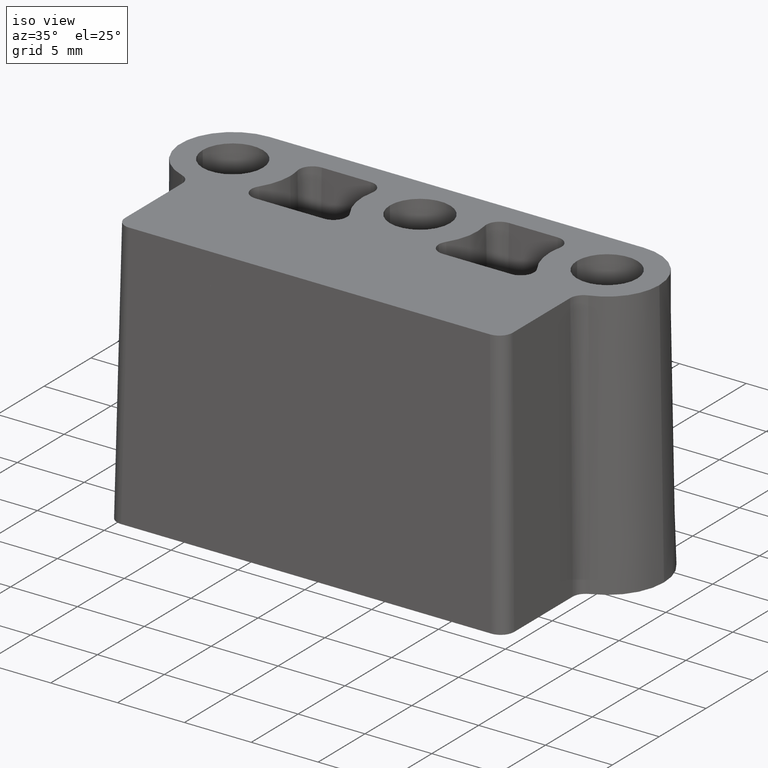
[diagram: clean part render]
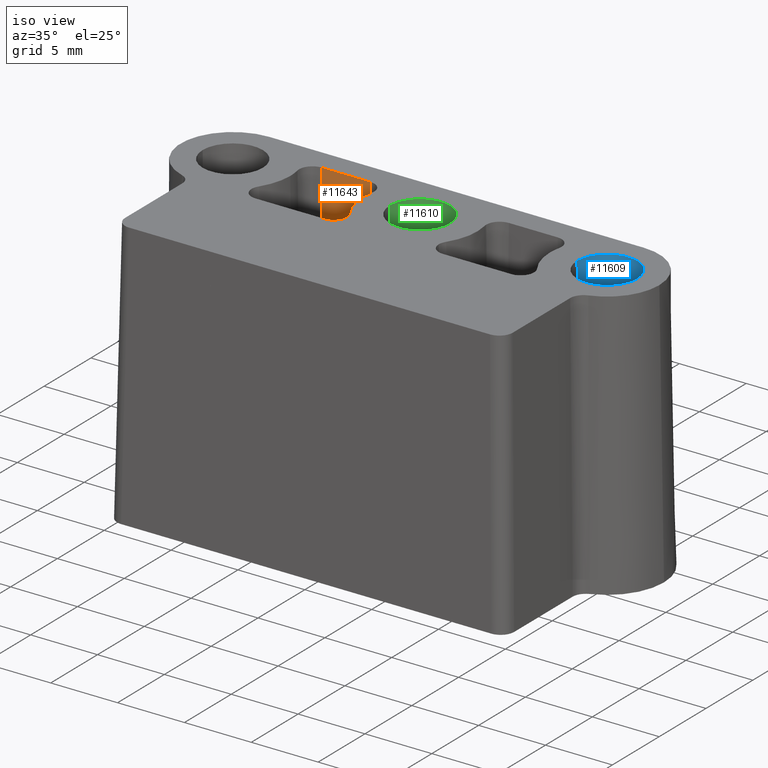
[diagram: same view with three faces highlighted in distinct colors, each labeled with its STEP entity id]
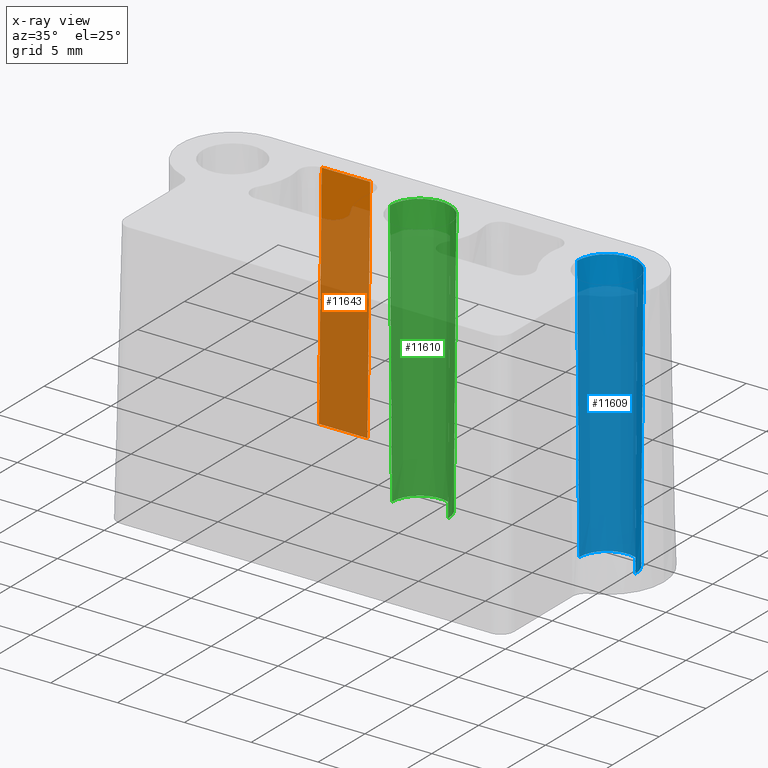
[diagram: x-ray of the same camera — body ghosted, the three highlighted faces saturated]
A machine part, iso view with three faces highlighted in distinct colors.
The next image is the same camera in x-ray (body ghosted, the three faces saturated) — at least one of them is partly hidden behind the body in this view.
Their STEP definitions:

[orange] entity #11643 — the highlighted planar face has unit normal (0, 0.9998, -0.0175).
#4049 = EDGE_CURVE ( 'NONE', #15443, #15431, #7108, .T. ) ;
#6266 = VERTEX_POINT ( 'NONE', #23541 ) ;
#6765 = VERTEX_POINT ( 'NONE', #21726 ) ;
#6856 = EDGE_LOOP ( 'NONE', ( #25269, #25274, #25267, #25300 ) ) ;
#6998 = DIRECTION ( 'NONE',  ( -1.513754957952235100E-017, 0.01745240643728355000, 0.9998476951563911600 ) ) ;
#7108 = LINE ( 'NONE', #7138, #34076 ) ;
#7138 = CARTESIAN_POINT ( 'NONE',  ( -5.184401802443297800, 34.40089870143563600, 20.00000000000000000 ) ) ;
#11228 = CARTESIAN_POINT ( 'NONE',  ( -8.815598197556704800, 34.40089870143563600, 20.00000000000000000 ) ) ;
#11232 = LINE ( 'NONE', #11228, #12269 ) ;
#11240 = DIRECTION ( 'NONE',  ( -1.000000000000000000, -0.0000000000000000000, -0.0000000000000000000 ) ) ;
#11643 = ADVANCED_FACE ( 'NONE', ( #31363 ), #31364, .F. ) ;
#12269 = VECTOR ( 'NONE', #11240, 1000.000000000000000 ) ;
#12756 = VECTOR ( 'NONE', #31746, 1000.000000000000000 ) ;
#12764 = VECTOR ( 'NONE', #31763, 1000.000000000000200 ) ;
#15192 = EDGE_CURVE ( 'NONE', #15431, #6765, #11232, .T. ) ;
#15431 = VERTEX_POINT ( 'NONE', #16253 ) ;
#15443 = VERTEX_POINT ( 'NONE', #16303 ) ;
#16253 = CARTESIAN_POINT ( 'NONE',  ( -5.184401802443297800, 34.40089870143563600, 20.00000000000000000 ) ) ;
#16303 = CARTESIAN_POINT ( 'NONE',  ( -5.184401802443297800, 34.10036695178277500, 2.782547593562719500 ) ) ;
#18939 = AXIS2_PLACEMENT_3D ( 'NONE', #31361, #31366, #31367 ) ;
#20166 = EDGE_CURVE ( 'NONE', #6266, #15443, #31744, .T. ) ;
#20170 = EDGE_CURVE ( 'NONE', #6266, #6765, #31761, .T. ) ;
#21726 = CARTESIAN_POINT ( 'NONE',  ( -8.815598197556704800, 34.40089870143563600, 20.00000000000000000 ) ) ;
#23541 = CARTESIAN_POINT ( 'NONE',  ( -8.815598197556704800, 34.10036695178277500, 2.782547593562723100 ) ) ;
#25267 = ORIENTED_EDGE ( 'NONE', *, *, #4049, .T. ) ;
#25269 = ORIENTED_EDGE ( 'NONE', *, *, #20170, .F. ) ;
#25274 = ORIENTED_EDGE ( 'NONE', *, *, #20166, .T. ) ;
#25300 = ORIENTED_EDGE ( 'NONE', *, *, #15192, .T. ) ;
#31361 = CARTESIAN_POINT ( 'NONE',  ( -8.815598197556704800, 34.40089870143563600, 20.00000000000000000 ) ) ;
#31363 = FACE_OUTER_BOUND ( 'NONE', #6856, .T. ) ;
#31364 = PLANE ( 'NONE',  #18939 ) ;
#31366 = DIRECTION ( 'NONE',  ( 0.0000000000000000000, 0.9998476951563912700, -0.01745240643728355000 ) ) ;
#31367 = DIRECTION ( 'NONE',  ( 0.0000000000000000000, 0.01745240643728354600, 0.9998476951563911600 ) ) ;
#31744 = LINE ( 'NONE', #31745, #12756 ) ;
#31745 = CARTESIAN_POINT ( 'NONE',  ( -8.815598197556704800, 34.10036695178277500, 2.782547593562716000 ) ) ;
#31746 = DIRECTION ( 'NONE',  ( 1.000000000000000000, -0.0000000000000000000, -0.0000000000000000000 ) ) ;
#31761 = LINE ( 'NONE', #31762, #12764 ) ;
#31762 = CARTESIAN_POINT ( 'NONE',  ( -8.815598197556704800, 34.40089870143563600, 20.00000000000000000 ) ) ;
#31763 = DIRECTION ( 'NONE',  ( -0.0000000000000000000, 0.01745240643728355000, 0.9998476951563911600 ) ) ;
#34076 = VECTOR ( 'NONE', #6998, 1000.000000000000200 ) ;

[blue] entity #11609 — the highlighted conical surface has half-angle 0.43 deg.
#3937 = EDGE_CURVE ( 'NONE', #15480, #15417, #32594, .T. ) ;
#3957 = EDGE_CURVE ( 'NONE', #15424, #6696, #32313, .T. ) ;
#6696 = VERTEX_POINT ( 'NONE', #22203 ) ;
#11292 = CARTESIAN_POINT ( 'NONE',  ( 13.99999999999999800, 32.29999999999999700, 20.00000000000000000 ) ) ;
#11293 = DIRECTION ( 'NONE',  ( 0.0000000000000000000, 0.0000000000000000000, 1.000000000000000000 ) ) ;
#11294 = DIRECTION ( 'NONE',  ( 1.000000000000000000, 0.0000000000000000000, 0.0000000000000000000 ) ) ;
#11460 = CARTESIAN_POINT ( 'NONE',  ( 13.99999999999999800, 32.29999999999999700, 0.0000000000000000000 ) ) ;
#11461 = DIRECTION ( 'NONE',  ( 0.0000000000000000000, 0.0000000000000000000, 1.000000000000000000 ) ) ;
#11462 = DIRECTION ( 'NONE',  ( 1.000000000000000000, 0.0000000000000000000, 0.0000000000000000000 ) ) ;
#11609 = ADVANCED_FACE ( 'NONE', ( #30844 ), #18960, .F. ) ;
#12117 = AXIS2_PLACEMENT_3D ( 'NONE', #11460, #11461, #11462 ) ;
#12169 = CIRCLE ( 'NONE', #12117, 2.100000000000001000 ) ;
#12280 = AXIS2_PLACEMENT_3D ( 'NONE', #11292, #11293, #11294 ) ;
#12282 = CIRCLE ( 'NONE', #12280, 2.249996408119448800 ) ;
#15227 = EDGE_CURVE ( 'NONE', #6696, #15417, #12282, .T. ) ;
#15311 = EDGE_CURVE ( 'NONE', #15424, #15480, #12169, .T. ) ;
#15376 = EDGE_LOOP ( 'NONE', ( #17894, #17893, #17892, #17891 ) ) ;
#15417 = VERTEX_POINT ( 'NONE', #16193 ) ;
#15424 = VERTEX_POINT ( 'NONE', #16210 ) ;
#15480 = VERTEX_POINT ( 'NONE', #16439 ) ;
#16193 = CARTESIAN_POINT ( 'NONE',  ( 11.75000359188055100, 32.29999999999999700, 20.00000000000000000 ) ) ;
#16210 = CARTESIAN_POINT ( 'NONE',  ( 16.10000000000000100, 32.29999999999999700, 0.0000000000000000000 ) ) ;
#16439 = CARTESIAN_POINT ( 'NONE',  ( 11.89999999999999900, 32.29999999999999700, 0.0000000000000000000 ) ) ;
#17891 = ORIENTED_EDGE ( 'NONE', *, *, #15227, .T. ) ;
#17892 = ORIENTED_EDGE ( 'NONE', *, *, #3957, .T. ) ;
#17893 = ORIENTED_EDGE ( 'NONE', *, *, #15311, .F. ) ;
#17894 = ORIENTED_EDGE ( 'NONE', *, *, #3937, .F. ) ;
#18955 = AXIS2_PLACEMENT_3D ( 'NONE', #30843, #30845, #30842 ) ;
#18960 = CONICAL_SURFACE ( 'NONE', #18955, 2.100000000000001000, 0.007499679795819651000 ) ;
#22203 = CARTESIAN_POINT ( 'NONE',  ( 16.24999640811944700, 32.29999999999999700, 20.00000000000000000 ) ) ;
#30842 = DIRECTION ( 'NONE',  ( 1.000000000000000000, 0.0000000000000000000, 0.0000000000000000000 ) ) ;
#30843 = CARTESIAN_POINT ( 'NONE',  ( 13.99999999999999800, 32.29999999999999700, 0.0000000000000000000 ) ) ;
#30844 = FACE_OUTER_BOUND ( 'NONE', #15376, .T. ) ;
#30845 = DIRECTION ( 'NONE',  ( 0.0000000000000000000, 0.0000000000000000000, 1.000000000000000000 ) ) ;
#32307 = CARTESIAN_POINT ( 'NONE',  ( 16.10000000000000100, 32.29999999999999700, 0.0000000000000000000 ) ) ;
#32313 = LINE ( 'NONE', #32307, #34092 ) ;
#32430 = DIRECTION ( 'NONE',  ( 0.007499609492522719600, 0.0000000000000000000, 0.9999718775332932000 ) ) ;
#32534 = DIRECTION ( 'NONE',  ( -0.007499609492522719600, 9.184372759873053400E-019, 0.9999718775332932000 ) ) ;
#32543 = CARTESIAN_POINT ( 'NONE',  ( 11.89999999999999900, 32.29999999999999700, 0.0000000000000000000 ) ) ;
#32594 = LINE ( 'NONE', #32543, #33989 ) ;
#33989 = VECTOR ( 'NONE', #32534, 1000.000000000000100 ) ;
#34092 = VECTOR ( 'NONE', #32430, 1000.000000000000100 ) ;

[green] entity #11610 — the highlighted conical surface has half-angle 0.43 deg.
#3912 = EDGE_CURVE ( 'NONE', #15485, #15420, #32149, .T. ) ;
#3913 = EDGE_CURVE ( 'NONE', #15426, #15422, #32545, .T. ) ;
#11287 = CARTESIAN_POINT ( 'NONE',  ( 0.0000000000000000000, 32.29999999999999700, 20.00000000000000000 ) ) ;
#11288 = DIRECTION ( 'NONE',  ( 0.0000000000000000000, 0.0000000000000000000, 1.000000000000000000 ) ) ;
#11289 = DIRECTION ( 'NONE',  ( 1.000000000000000000, 0.0000000000000000000, 0.0000000000000000000 ) ) ;
#11610 = ADVANCED_FACE ( 'NONE', ( #30848 ), #18958, .F. ) ;
#12120 = AXIS2_PLACEMENT_3D ( 'NONE', #15979, #15980, #15981 ) ;
#12171 = CIRCLE ( 'NONE', #12120, 2.099999999999999600 ) ;
#12279 = AXIS2_PLACEMENT_3D ( 'NONE', #11287, #11288, #11289 ) ;
#12284 = CIRCLE ( 'NONE', #12279, 2.249996408119447000 ) ;
#15225 = EDGE_CURVE ( 'NONE', #15420, #15422, #12284, .T. ) ;
#15323 = EDGE_CURVE ( 'NONE', #15485, #15426, #12171, .T. ) ;
#15375 = EDGE_LOOP ( 'NONE', ( #17890, #17889, #17888, #17887 ) ) ;
#15420 = VERTEX_POINT ( 'NONE', #16205 ) ;
#15422 = VERTEX_POINT ( 'NONE', #16208 ) ;
#15426 = VERTEX_POINT ( 'NONE', #16223 ) ;
#15485 = VERTEX_POINT ( 'NONE', #16453 ) ;
#15979 = CARTESIAN_POINT ( 'NONE',  ( 0.0000000000000000000, 32.29999999999999700, 0.0000000000000000000 ) ) ;
#15980 = DIRECTION ( 'NONE',  ( 0.0000000000000000000, 0.0000000000000000000, 1.000000000000000000 ) ) ;
#15981 = DIRECTION ( 'NONE',  ( 1.000000000000000000, 0.0000000000000000000, 0.0000000000000000000 ) ) ;
#16205 = CARTESIAN_POINT ( 'NONE',  ( 2.249996408119447500, 32.29999999999999700, 20.00000000000000000 ) ) ;
#16208 = CARTESIAN_POINT ( 'NONE',  ( -2.249996408119447500, 32.29999999999999700, 20.00000000000000000 ) ) ;
#16223 = CARTESIAN_POINT ( 'NONE',  ( -2.099999999999999600, 32.29999999999999700, 0.0000000000000000000 ) ) ;
#16453 = CARTESIAN_POINT ( 'NONE',  ( 2.099999999999999600, 32.29999999999999700, 0.0000000000000000000 ) ) ;
#17887 = ORIENTED_EDGE ( 'NONE', *, *, #15225, .T. ) ;
#17888 = ORIENTED_EDGE ( 'NONE', *, *, #3912, .T. ) ;
#17889 = ORIENTED_EDGE ( 'NONE', *, *, #15323, .F. ) ;
#17890 = ORIENTED_EDGE ( 'NONE', *, *, #3913, .F. ) ;
#18953 = AXIS2_PLACEMENT_3D ( 'NONE', #30847, #30849, #30846 ) ;
#18958 = CONICAL_SURFACE ( 'NONE', #18953, 2.099999999999999600, 0.007499679795819651000 ) ;
#30846 = DIRECTION ( 'NONE',  ( 1.000000000000000000, 0.0000000000000000000, 0.0000000000000000000 ) ) ;
#30847 = CARTESIAN_POINT ( 'NONE',  ( 0.0000000000000000000, 32.29999999999999700, 0.0000000000000000000 ) ) ;
#30848 = FACE_OUTER_BOUND ( 'NONE', #15375, .T. ) ;
#30849 = DIRECTION ( 'NONE',  ( 0.0000000000000000000, 0.0000000000000000000, 1.000000000000000000 ) ) ;
#32138 = DIRECTION ( 'NONE',  ( -0.007499609492522719600, 9.184372759873053400E-019, 0.9999718775332932000 ) ) ;
#32142 = CARTESIAN_POINT ( 'NONE',  ( -2.099999999999999600, 32.29999999999999700, 0.0000000000000000000 ) ) ;
#32144 = DIRECTION ( 'NONE',  ( 0.007499609492522719600, 0.0000000000000000000, 0.9999718775332932000 ) ) ;
#32146 = CARTESIAN_POINT ( 'NONE',  ( 2.099999999999999600, 32.29999999999999700, 0.0000000000000000000 ) ) ;
#32149 = LINE ( 'NONE', #32146, #33902 ) ;
#32545 = LINE ( 'NONE', #32142, #33657 ) ;
#33657 = VECTOR ( 'NONE', #32138, 1000.000000000000100 ) ;
#33902 = VECTOR ( 'NONE', #32144, 1000.000000000000100 ) ;